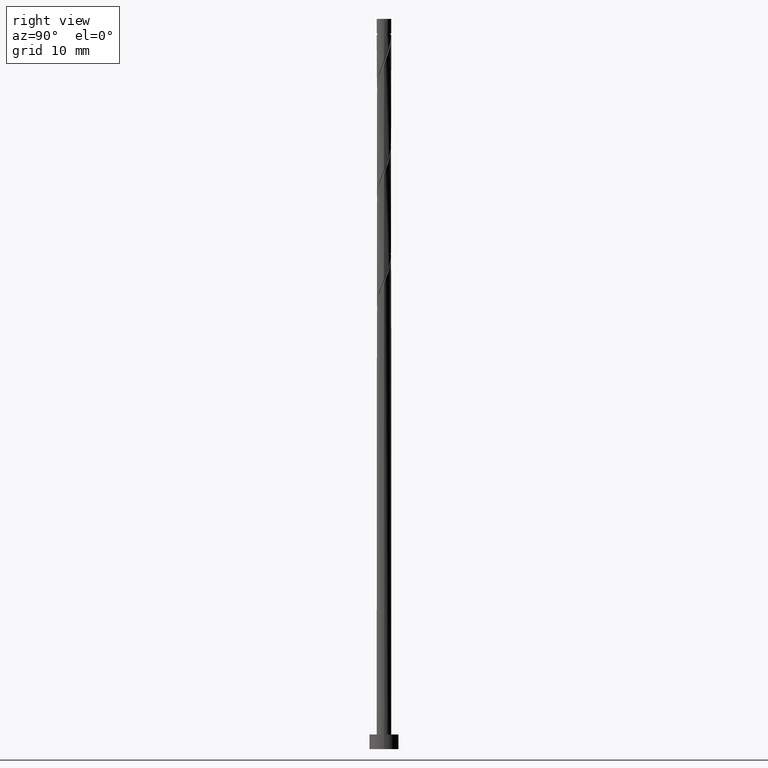
[diagram: clean part render]
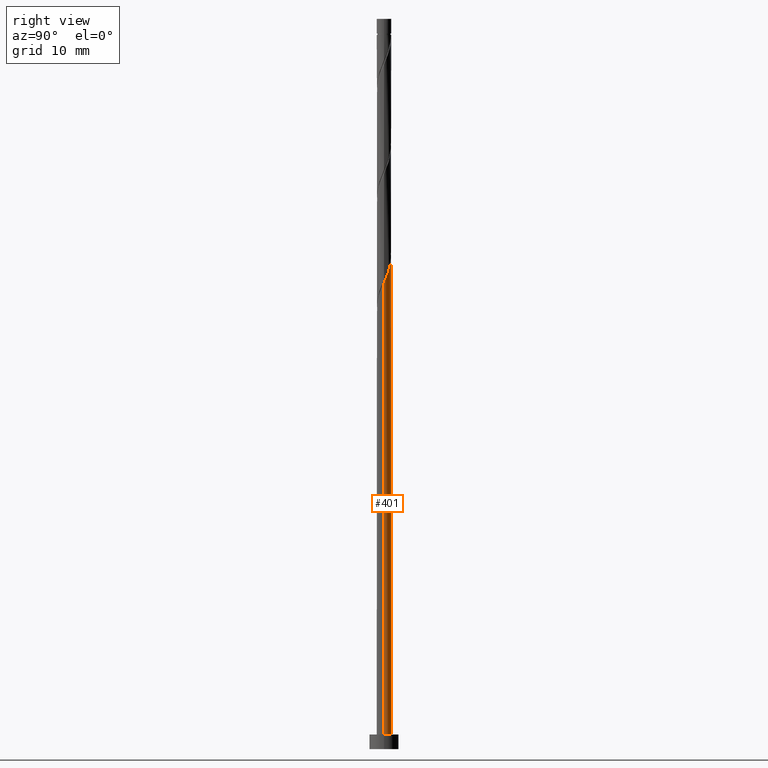
[diagram: same view with one face highlighted and labeled with its STEP entity id]
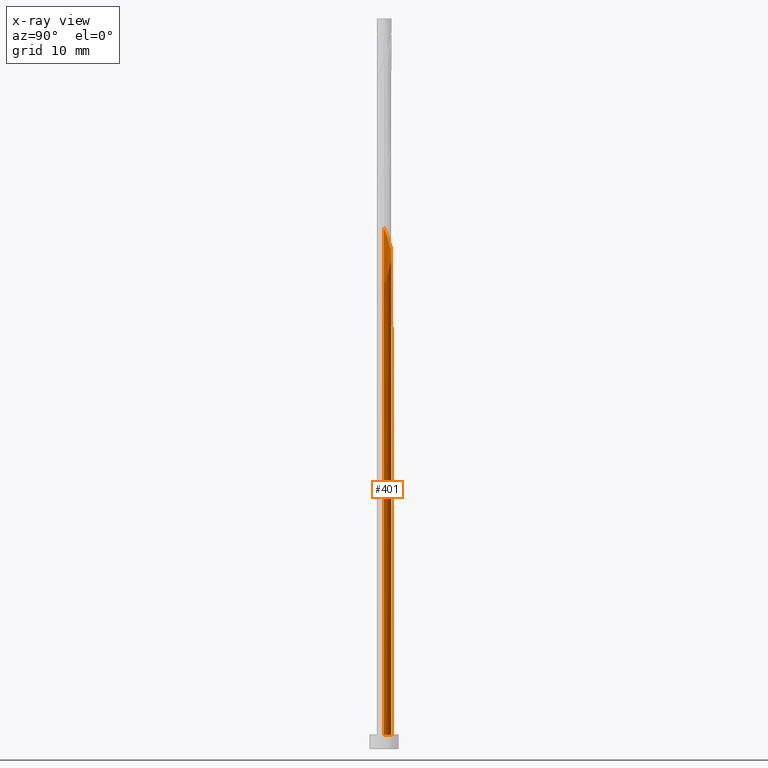
[diagram: x-ray of the same camera — body ghosted, the highlighted face saturated]
A machine part, right view. The second image highlights one B-rep face of the part: STEP entity #401.
The next image is the same camera in x-ray: the body ghosted, the highlighted face saturated — about 0% of this face is hidden behind the body in this view.
In plain terms, the highlighted cylindrical surface (edge-blend (fillet) strip) has radius 1 mm, axis along (-0, -0, -1).
Its self-contained STEP definition (entity closure, byte-faithful):
#2 = CARTESIAN_POINT ( 'NONE',  ( -0.2753202675821135870, 0.9773893565945337425, 68.21666666666666856 ) ) ;
#3 = CARTESIAN_POINT ( 'NONE',  ( -0.5630650428037468069, 0.8264125831401737399, 54.46666666666666856 ) ) ;
#13 = CARTESIAN_POINT ( 'NONE',  ( -0.8391613293177733190, 0.5717512286855107595, 69.88333333333332575 ) ) ;
#32 = CARTESIAN_POINT ( 'NONE',  ( 1.000000000000000000, 1.224646799147353207E-16, 2.000000000000000000 ) ) ;
#49 = VECTOR ( 'NONE', #752, 1000.000000000000000 ) ;
#61 = DIRECTION ( 'NONE',  ( 1.000000000000000000, 0.000000000000000000, 0.000000000000000000 ) ) ;
#67 = CARTESIAN_POINT ( 'NONE',  ( -0.7160823004724661267, 0.6980158586665925480, 54.46666666666666856 ) ) ;
#76 = CARTESIAN_POINT ( 'NONE',  ( -0.9841041459904503741, 0.2502603323944274094, 55.71666666666666856 ) ) ;
#112 = CARTESIAN_POINT ( 'NONE',  ( -0.9147317533455050498, 0.4408594147199556557, 55.71666666666665435 ) ) ;
#134 = CARTESIAN_POINT ( 'NONE',  ( -0.09987492177719069220, 0.9949999999999999956, 67.79999999999999716 ) ) ;
#135 = EDGE_CURVE ( 'NONE', #878, #1132, #860, .T. ) ;
#140 = CARTESIAN_POINT ( 'NONE',  ( 0.000000000000000000, 0.000000000000000000, 52.79999999999999716 ) ) ;
#153 = DIRECTION ( 'NONE',  ( -0.000000000000000000, -0.000000000000000000, -1.000000000000000000 ) ) ;
#158 = CARTESIAN_POINT ( 'NONE',  ( -1.000000000000000000, 0.000000000000000000, 100.0000000000000000 ) ) ;
#177 = EDGE_CURVE ( 'NONE', #575, #459, #623, .T. ) ;
#193 = ORIENTED_EDGE ( 'NONE', *, *, #1000, .F. ) ;
#205 = EDGE_LOOP ( 'NONE', ( #1303, #941, #834, #193, #1116, #547, #738, #729 ) ) ;
#212 =( BOUNDED_CURVE ( )  B_SPLINE_CURVE ( 2, ( #717, #1248, #703, #583, #1273, #1038, #1162, #454, #258, #1148, #134, #2, #1256, #926, #1476, #13, #466, #1360, #1484, #462, #343 ),
 .UNSPECIFIED., .F., .T. ) 
 B_SPLINE_CURVE_WITH_KNOTS ( ( 3, 2, 2, 2, 2, 2, 2, 2, 2, 2, 3 ),
 ( 0.1835262615578969470, 0.1944444444444444198, 0.2083333333333333703, 0.2222222222222222099, 0.2361111111111111605, 0.2500000000000000000, 0.2638888888888888395, 0.2777777777777777901, 0.2916666666666666297, 0.3055555555555555802, 0.3085262615578962531 ),
 .UNSPECIFIED. ) 
 CURVE ( )  GEOMETRIC_REPRESENTATION_ITEM ( )  RATIONAL_B_SPLINE_CURVE ( ( 0.9475153373969227300, 0.9410068908218438555, 0.9523809523809509958, 0.9379121457259110839, 0.9523809523809509958, 0.9379121457259110839, 0.9523809523809509958, 0.9379121457259110839, 0.9523809523809509958, 0.9379121457259110839, 0.9523809523809509958, 0.9379121457259110839, 0.9523809523809509958, 0.9379121457259110839, 0.9523809523809509958, 0.9379121457259110839, 0.9523809523809509958, 0.9379121457259110839, 0.9523809523809509958, 0.9492862072850190014, 0.9475153373969236181 ) ) 
 REPRESENTATION_ITEM ( '' )  );
#247 = CARTESIAN_POINT ( 'NONE',  ( 0.09987492177719117792, 0.9949999999999999956, 52.79999999999999005 ) ) ;
#258 = CARTESIAN_POINT ( 'NONE',  ( 0.2464583156134448894, 0.9691533927428533923, 66.96666666666668277 ) ) ;
#313 = CARTESIAN_POINT ( 'NONE',  ( -0.9116327376541116800, 0.4110057805399690567, 55.30000000000001137 ) ) ;
#320 = CARTESIAN_POINT ( 'NONE',  ( -0.9999999999999997780, -8.453207281310098825E-15, 56.31035135352637155 ) ) ;
#327 = AXIS2_PLACEMENT_3D ( 'NONE', #469, #712, #922 ) ;
#343 = CARTESIAN_POINT ( 'NONE',  ( -1.000000000000000000, -8.581936326203146096E-17, 71.31035135352634313 ) ) ;
#353 = CARTESIAN_POINT ( 'NONE',  ( -1.000000000000000000, 0.000000000000000000, 2.000000000000000000 ) ) ;
#358 = CARTESIAN_POINT ( 'NONE',  ( -0.07557042402773173073, 1.012610643405466249, 53.21666666666666856 ) ) ;
#389 = CARTESIAN_POINT ( 'NONE',  ( -1.000000000000000222, 1.930935673395703404E-16, 56.78964864647364408 ) ) ;
#401 = ADVANCED_FACE ( 'NONE', ( #1268 ), #1045, .T. ) ;
#454 = CARTESIAN_POINT ( 'NONE',  ( 0.4173462071991573263, 0.9256961420802408691, 66.55000000000001137 ) ) ;
#459 = VERTEX_POINT ( 'NONE', #353 ) ;
#462 = CARTESIAN_POINT ( 'NONE',  ( -0.9999999999999995559, 0.03726283816067638144, 71.22138669025331126 ) ) ;
#466 = CARTESIAN_POINT ( 'NONE',  ( -0.9116327376541116800, 0.4110057805399690567, 70.29999999999999716 ) ) ;
#469 = CARTESIAN_POINT ( 'NONE',  ( 0.000000000000000000, 0.000000000000000000, 100.0000000000000000 ) ) ;
#478 = AXIS2_PLACEMENT_3D ( 'NONE', #749, #1089, #61 ) ;
#508 = EDGE_CURVE ( 'NONE', #1132, #1189, #1388, .T. ) ;
#547 = ORIENTED_EDGE ( 'NONE', *, *, #1155, .T. ) ;
#575 = VERTEX_POINT ( 'NONE', #32 ) ;
#583 = CARTESIAN_POINT ( 'NONE',  ( 0.9147317533455051608, 0.4408594147199549895, 64.88333333333335418 ) ) ;
#585 = CARTESIAN_POINT ( 'NONE',  ( -0.7087838784083368981, 0.7271290242001066106, 54.88333333333333997 ) ) ;
#601 = VECTOR ( 'NONE', #153, 1000.000000000000000 ) ;
#623 = CIRCLE ( 'NONE', #478, 1.000000000000000000 ) ;
#634 = VECTOR ( 'NONE', #1383, 1000.000000000000000 ) ;
#664 = CARTESIAN_POINT ( 'NONE',  ( -0.9999999999999997780, -8.453207281310098825E-15, 56.31035135352637155 ) ) ;
#687 = AXIS2_PLACEMENT_3D ( 'NONE', #140, #732, #1399 ) ;
#691 = CARTESIAN_POINT ( 'NONE',  ( -0.9999999999999993339, 0.1381563937346801385, 56.45980160168809192 ) ) ;
#703 = CARTESIAN_POINT ( 'NONE',  ( 0.9625406160859107940, 0.2711375340762608444, 64.46666666666668277 ) ) ;
#712 = DIRECTION ( 'NONE',  ( -0.000000000000000000, -0.000000000000000000, -1.000000000000000000 ) ) ;
#717 = CARTESIAN_POINT ( 'NONE',  ( 1.000000000000000000, 7.866774965686214893E-17, 63.81035135352636445 ) ) ;
#728 = EDGE_CURVE ( 'NONE', #1161, #766, #1041, .T. ) ;
#729 = ORIENTED_EDGE ( 'NONE', *, *, #135, .F. ) ;
#732 = DIRECTION ( 'NONE',  ( 0.000000000000000000, -0.000000000000000000, -1.000000000000000000 ) ) ;
#738 = ORIENTED_EDGE ( 'NONE', *, *, #508, .F. ) ;
#749 = CARTESIAN_POINT ( 'NONE',  ( 0.000000000000000000, 0.000000000000000000, 2.000000000000000000 ) ) ;
#752 = DIRECTION ( 'NONE',  ( -0.000000000000000000, -0.000000000000000000, -1.000000000000000000 ) ) ;
#766 = VERTEX_POINT ( 'NONE', #320 ) ;
#777 = CARTESIAN_POINT ( 'NONE',  ( -1.000000000000000000, 0.03726283816066924826, 56.22138669025333968 ) ) ;
#792 = VERTEX_POINT ( 'NONE', #1004 ) ;
#805 = CARTESIAN_POINT ( 'NONE',  ( -1.000000000000000000, 0.000000000000000000, 100.0000000000000000 ) ) ;
#834 = ORIENTED_EDGE ( 'NONE', *, *, #177, .T. ) ;
#850 = CARTESIAN_POINT ( 'NONE',  ( 0.09987492177719117792, 0.9949999999999999956, 52.79999999999999716 ) ) ;
#860 = LINE ( 'NONE', #158, #601 ) ;
#864 = LINE ( 'NONE', #957, #49 ) ;
#878 = VERTEX_POINT ( 'NONE', #1043 ) ;
#888 = CARTESIAN_POINT ( 'NONE',  ( -0.4341617696046364827, 0.9008349226211040950, 53.63333333333332575 ) ) ;
#922 = DIRECTION ( 'NONE',  ( -1.000000000000000000, 0.000000000000000000, 0.000000000000000000 ) ) ;
#926 = CARTESIAN_POINT ( 'NONE',  ( -0.5930032716271594895, 0.8242804886476743365, 69.04999999999998295 ) ) ;
#929 = CARTESIAN_POINT ( 'NONE',  ( -0.4173462071991568267, 0.9256961420802414242, 54.05000000000000426 ) ) ;
#941 = ORIENTED_EDGE ( 'NONE', *, *, #1138, .T. ) ;
#957 = CARTESIAN_POINT ( 'NONE',  ( 1.000000000000000000, 1.224646799147353207E-16, 100.0000000000000000 ) ) ;
#984 = EDGE_CURVE ( 'NONE', #792, #878, #212, .T. ) ;
#1000 = EDGE_CURVE ( 'NONE', #766, #459, #1369, .T. ) ;
#1004 = CARTESIAN_POINT ( 'NONE',  ( 1.000000000000000000, 7.866774965686214893E-17, 63.81035135352636445 ) ) ;
#1038 = CARTESIAN_POINT ( 'NONE',  ( 0.7087838784083370092, 0.7271290242001062776, 65.71666666666665435 ) ) ;
#1041 =( BOUNDED_CURVE ( )  B_SPLINE_CURVE ( 2, ( #1238, #1461, #888, #1350, #67, #1314, #313, #76, #1127, #777, #664 ),
 .UNSPECIFIED., .F., .T. ) 
 B_SPLINE_CURVE_WITH_KNOTS ( ( 3, 2, 2, 2, 2, 3 ),
 ( 0.000000000000000000, 0.01388888888888883955, 0.02777777777777779011, 0.04166666666666662966, 0.05555555555555558023, 0.05852626155789682205 ),
 .UNSPECIFIED. ) 
 CURVE ( )  GEOMETRIC_REPRESENTATION_ITEM ( )  RATIONAL_B_SPLINE_CURVE ( ( 0.9523809523809509958, 0.9379121457259110839, 0.9523809523809509958, 0.9379121457259110839, 0.9523809523809509958, 0.9379121457259110839, 0.9523809523809509958, 0.9379121457259110839, 0.9523809523809509958, 0.9492862072850183353, 0.9475153373969229520 ) ) 
 REPRESENTATION_ITEM ( '' )  );
#1043 = CARTESIAN_POINT ( 'NONE',  ( -1.000000000000000000, -8.581936326203144864E-17, 71.31035135352634313 ) ) ;
#1045 = CYLINDRICAL_SURFACE ( 'NONE', #327, 1.000000000000000000 ) ;
#1062 = CIRCLE ( 'NONE', #687, 1.000000000000000000 ) ;
#1089 = DIRECTION ( 'NONE',  ( 0.000000000000000000, 0.000000000000000000, 1.000000000000000000 ) ) ;
#1116 = ORIENTED_EDGE ( 'NONE', *, *, #728, .F. ) ;
#1127 = CARTESIAN_POINT ( 'NONE',  ( -0.9972268124083832896, 0.07442233948093028573, 56.13333333333333997 ) ) ;
#1132 = VERTEX_POINT ( 'NONE', #389 ) ;
#1137 = CARTESIAN_POINT ( 'NONE',  ( -0.9625406160859105720, 0.2711375340762611774, 56.13333333333331865 ) ) ;
#1138 = EDGE_CURVE ( 'NONE', #792, #575, #864, .T. ) ;
#1148 = CARTESIAN_POINT ( 'NONE',  ( 0.07557042402773175849, 1.012610643405466027, 67.38333333333333997 ) ) ;
#1155 = EDGE_CURVE ( 'NONE', #1161, #1189, #1062, .T. ) ;
#1161 = VERTEX_POINT ( 'NONE', #1176 ) ;
#1162 = CARTESIAN_POINT ( 'NONE',  ( 0.5630650428037471400, 0.8264125831401735178, 66.13333333333333997 ) ) ;
#1176 = CARTESIAN_POINT ( 'NONE',  ( -0.09987492177719069220, 0.9949999999999997735, 52.79999999999999716 ) ) ;
#1189 = VERTEX_POINT ( 'NONE', #850 ) ;
#1238 = CARTESIAN_POINT ( 'NONE',  ( -0.09987492177719069220, 0.9949999999999997735, 52.79999999999999716 ) ) ;
#1248 = CARTESIAN_POINT ( 'NONE',  ( 0.9999999999999985567, 0.1381563937346822202, 64.14019839831192371 ) ) ;
#1250 = CARTESIAN_POINT ( 'NONE',  ( -1.000000000000000222, 1.930935673395703650E-16, 56.78964864647364408 ) ) ;
#1256 = CARTESIAN_POINT ( 'NONE',  ( -0.4341617696046364827, 0.9008349226211040950, 68.63333333333335418 ) ) ;
#1258 = CARTESIAN_POINT ( 'NONE',  ( -0.8117578158769209740, 0.5839942194600310499, 55.30000000000000426 ) ) ;
#1268 = FACE_OUTER_BOUND ( 'NONE', #205, .T. ) ;
#1273 = CARTESIAN_POINT ( 'NONE',  ( 0.8117578158769208629, 0.5839942194600310499, 65.29999999999999716 ) ) ;
#1303 = ORIENTED_EDGE ( 'NONE', *, *, #984, .F. ) ;
#1314 = CARTESIAN_POINT ( 'NONE',  ( -0.8391613293177733190, 0.5717512286855107595, 54.88333333333332575 ) ) ;
#1350 = CARTESIAN_POINT ( 'NONE',  ( -0.5930032716271594895, 0.8242804886476743365, 54.05000000000001137 ) ) ;
#1360 = CARTESIAN_POINT ( 'NONE',  ( -0.9841041459904503741, 0.2502603323944274094, 70.71666666666669698 ) ) ;
#1369 = LINE ( 'NONE', #805, #634 ) ;
#1379 = CARTESIAN_POINT ( 'NONE',  ( -0.2464583156134442510, 0.9691533927428537254, 53.63333333333333286 ) ) ;
#1383 = DIRECTION ( 'NONE',  ( -0.000000000000000000, -0.000000000000000000, -1.000000000000000000 ) ) ;
#1388 =( BOUNDED_CURVE ( )  B_SPLINE_CURVE ( 2, ( #1250, #691, #1137, #112, #1258, #585, #3, #929, #1379, #358, #247 ),
 .UNSPECIFIED., .F., .T. ) 
 B_SPLINE_CURVE_WITH_KNOTS ( ( 3, 2, 2, 2, 2, 3 ),
 ( 0.9335262615578967527, 0.9444444444444444198, 0.9583333333333333703, 0.9722222222222222099, 0.9861111111111111605, 1.000000000000000000 ),
 .UNSPECIFIED. ) 
 CURVE ( )  GEOMETRIC_REPRESENTATION_ITEM ( )  RATIONAL_B_SPLINE_CURVE ( ( 0.9475153373969248394, 0.9410068908218454098, 0.9523809523809528832, 0.9379121457259129713, 0.9523809523809528832, 0.9379121457259129713, 0.9523809523809528832, 0.9379121457259129713, 0.9523809523809528832, 0.9379121457259129713, 0.9523809523809528832 ) ) 
 REPRESENTATION_ITEM ( '' )  );
#1399 = DIRECTION ( 'NONE',  ( -1.000000000000000000, 0.000000000000000000, 0.000000000000000000 ) ) ;
#1461 = CARTESIAN_POINT ( 'NONE',  ( -0.2753202675821135870, 0.9773893565945337425, 53.21666666666666856 ) ) ;
#1476 = CARTESIAN_POINT ( 'NONE',  ( -0.7160823004724661267, 0.6980158586665925480, 69.46666666666665435 ) ) ;
#1484 = CARTESIAN_POINT ( 'NONE',  ( -0.9972268124083832896, 0.07442233948093028573, 71.13333333333331154 ) ) ;